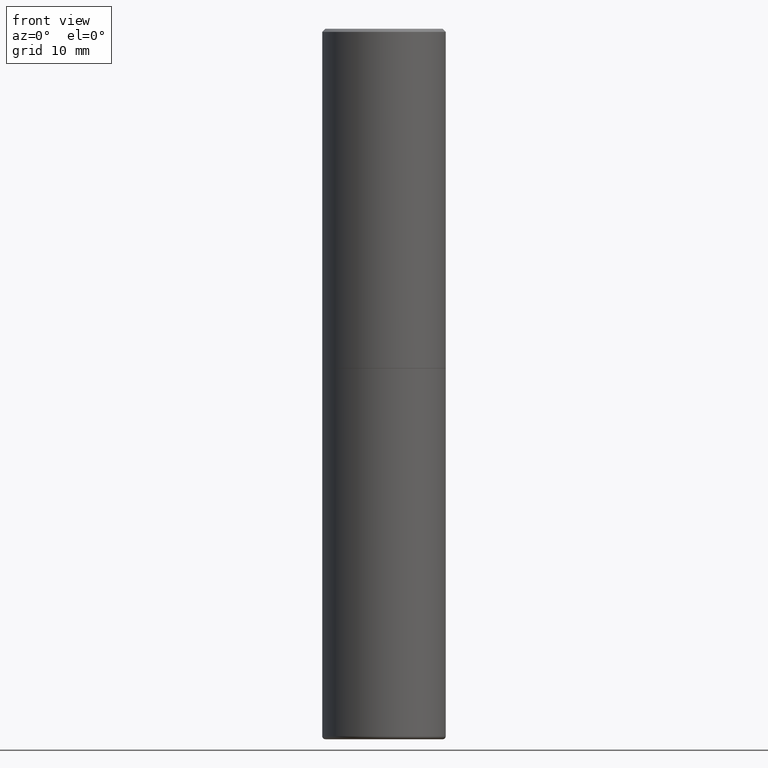
[diagram: clean part render]
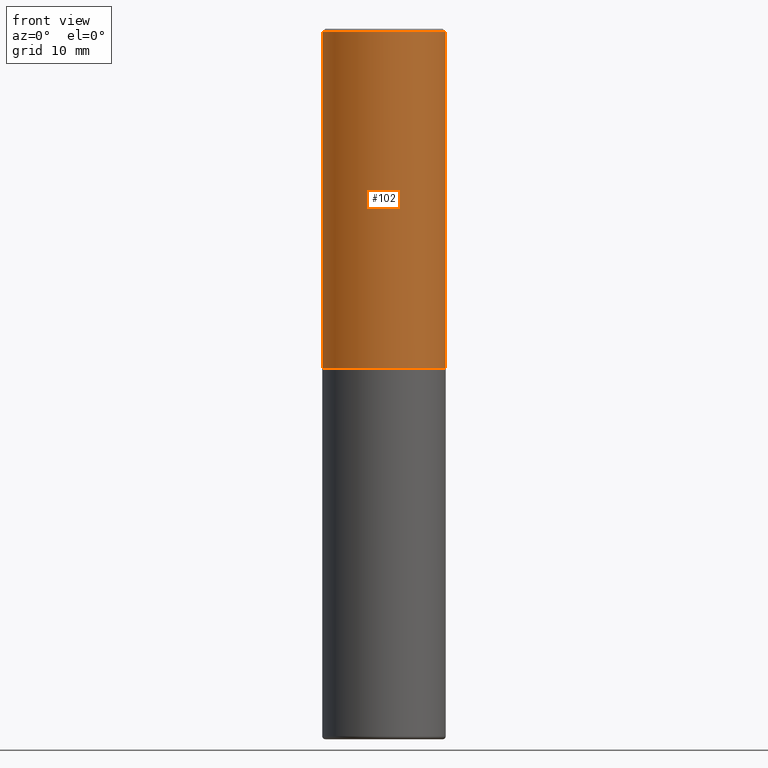
[diagram: same view with one face highlighted and labeled with its STEP entity id]
A machine part, front view. The second image highlights one B-rep face of the part: STEP entity #102.
In plain terms, the highlighted cylindrical surface (partial cylindrical patch) has radius 10 mm, axis along (-0, 0, 1).
Its self-contained STEP definition (entity closure, byte-faithful):
#1 = EDGE_CURVE ( 'NONE', #403, #349, #362, .T. ) ;
#11 = DIRECTION ( 'NONE',  ( -2.445468806185136877E-29, 3.491481338843145188E-15, 1.000000000000000000 ) ) ;
#15 = CARTESIAN_POINT ( 'NONE',  ( -0.3937000000000001609, 2.797406750687515575E-15, -1.936584745033357296E-29 ) ) ;
#21 = ORIENTED_EDGE ( 'NONE', *, *, #223, .F. ) ;
#34 = ORIENTED_EDGE ( 'NONE', *, *, #1, .T. ) ;
#43 = DIRECTION ( 'NONE',  ( -2.445468806185136597E-29, 3.491481338843145583E-15, 1.000000000000000000 ) ) ;
#47 = CYLINDRICAL_SURFACE ( 'NONE', #260, 0.3937000000000001609 ) ;
#70 = CARTESIAN_POINT ( 'NONE',  ( 0.3937000000000001609, -2.749192406205084400E-15, 1.919750796630860732E-29 ) ) ;
#87 = EDGE_CURVE ( 'NONE', #182, #349, #255, .T. ) ;
#88 = VERTEX_POINT ( 'NONE', #212 ) ;
#102 = ADVANCED_FACE ( 'NONE', ( #106 ), #47, .T. ) ;
#106 = FACE_OUTER_BOUND ( 'NONE', #190, .T. ) ;
#120 = ORIENTED_EDGE ( 'NONE', *, *, #87, .F. ) ;
#143 = AXIS2_PLACEMENT_3D ( 'NONE', #418, #43, #170 ) ;
#170 = DIRECTION ( 'NONE',  ( 1.000000000000000000, -6.982962677686265922E-15, 0.000000000000000000 ) ) ;
#176 = DIRECTION ( 'NONE',  ( 1.000000000000000000, -6.982962677686266711E-15, 4.876176775795935793E-29 ) ) ;
#182 = VERTEX_POINT ( 'NONE', #246 ) ;
#183 = EDGE_CURVE ( 'NONE', #88, #403, #235, .T. ) ;
#190 = EDGE_LOOP ( 'NONE', ( #21, #380, #34, #120 ) ) ;
#197 = DIRECTION ( 'NONE',  ( -2.445468806185136877E-29, 3.491481338843145188E-15, 1.000000000000000000 ) ) ;
#212 = CARTESIAN_POINT ( 'NONE',  ( -0.3937000000000003830, -1.015989167596963746E-15, -2.164399999999999658 ) ) ;
#223 = EDGE_CURVE ( 'NONE', #88, #182, #397, .T. ) ;
#235 = CIRCLE ( 'NONE', #290, 0.3937000000000002720 ) ;
#238 = DIRECTION ( 'NONE',  ( 1.000000000000000000, -6.982962677686269077E-15, 0.000000000000000000 ) ) ;
#246 = CARTESIAN_POINT ( 'NONE',  ( -0.3937000000000000499, 2.679362779428219918E-15, -0.02000000000000008715 ) ) ;
#255 = CIRCLE ( 'NONE', #143, 0.3937000000000000499 ) ;
#260 = AXIS2_PLACEMENT_3D ( 'NONE', #310, #376, #176 ) ;
#267 = CARTESIAN_POINT ( 'NONE',  ( 0.3937000000000000499, -2.770807688499515734E-15, -0.02000000000000008715 ) ) ;
#290 = AXIS2_PLACEMENT_3D ( 'NONE', #369, #371, #238 ) ;
#310 = CARTESIAN_POINT ( 'NONE',  ( 0.000000000000000000, 0.000000000000000000, 0.000000000000000000 ) ) ;
#349 = VERTEX_POINT ( 'NONE', #267 ) ;
#354 = CARTESIAN_POINT ( 'NONE',  ( 0.3937000000000002720, -1.030615461599718763E-14, -2.164399999999999658 ) ) ;
#362 = LINE ( 'NONE', #70, #395 ) ;
#369 = CARTESIAN_POINT ( 'NONE',  ( 5.292972684107107621E-29, -7.556962209792102838E-15, -2.164399999999999658 ) ) ;
#371 = DIRECTION ( 'NONE',  ( -2.445468806185136597E-29, 3.491481338843145583E-15, 1.000000000000000000 ) ) ;
#376 = DIRECTION ( 'NONE',  ( -2.445468806185136597E-29, 3.491481338843145583E-15, 1.000000000000000000 ) ) ;
#380 = ORIENTED_EDGE ( 'NONE', *, *, #183, .T. ) ;
#395 = VECTOR ( 'NONE', #197, 39.37007874015748143 ) ;
#397 = LINE ( 'NONE', #15, #410 ) ;
#403 = VERTEX_POINT ( 'NONE', #354 ) ;
#410 = VECTOR ( 'NONE', #11, 39.37007874015748143 ) ;
#418 = CARTESIAN_POINT ( 'NONE',  ( 4.890937612370294178E-31, -6.982962677686321191E-17, -0.02000000000000008715 ) ) ;